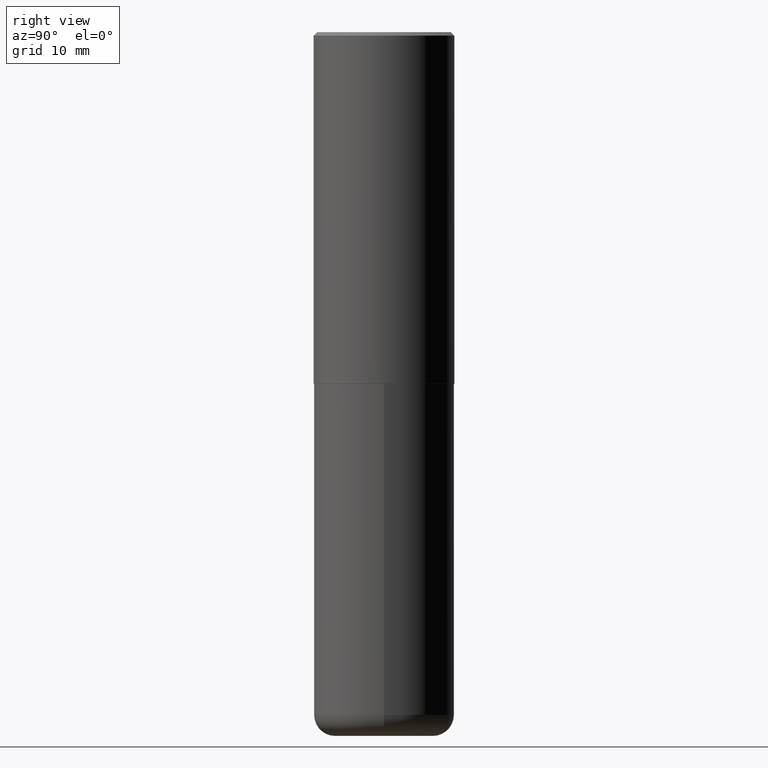
[diagram: clean part render]
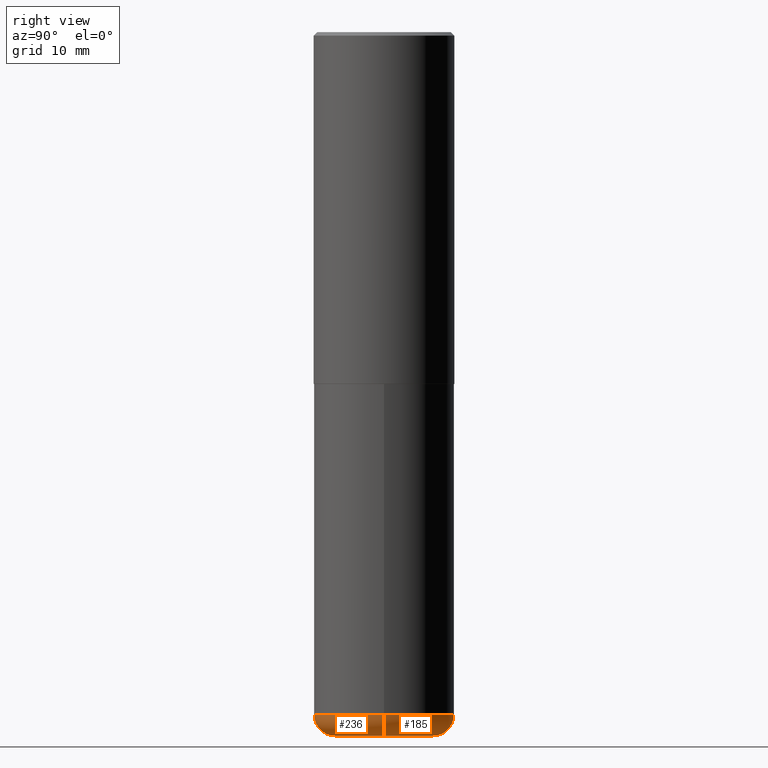
[diagram: same view with one multi-face feature highlighted, each face labeled with its STEP entity id]
A machine part, right view. The highlighted faces form ONE feature: a constant-radius fillet chain: 2 tangent blend faces with common blend radius 2.9997 mm. The faces share edges in the B-rep.
Their STEP definitions:
[1] entity #236 (Torus):
#11 = DIRECTION ( 'NONE',  ( 1.000000000000000000, -6.982962677686268288E-15, 4.883557194083112901E-29 ) ) ;
#31 = DIRECTION ( 'NONE',  ( -2.445468806185136597E-29, 3.491481338843145583E-15, 1.000000000000000000 ) ) ;
#32 = ORIENTED_EDGE ( 'NONE', *, *, #164, .F. ) ;
#36 = EDGE_CURVE ( 'NONE', #269, #348, #250, .T. ) ;
#54 = AXIS2_PLACEMENT_3D ( 'NONE', #320, #31, #166 ) ;
#60 = CARTESIAN_POINT ( 'NONE',  ( 0.2756000000000000116, -1.525812259887842581E-14, -3.818900000000000183 ) ) ;
#79 = EDGE_CURVE ( 'NONE', #309, #348, #107, .T. ) ;
#84 = CARTESIAN_POINT ( 'NONE',  ( 9.339000823940418668E-29, -1.333361808490808928E-14, -3.818900000000000183 ) ) ;
#93 = CARTESIAN_POINT ( 'NONE',  ( 9.339000823940418668E-29, -1.333361808490808928E-14, -3.818900000000000183 ) ) ;
#102 = CIRCLE ( 'NONE', #54, 0.2756000000000000116 ) ;
#105 = CARTESIAN_POINT ( 'NONE',  ( 0.3937000000000000499, -1.608281049111317408E-14, -3.818900000000000183 ) ) ;
#107 = CIRCLE ( 'NONE', #159, 0.3937000000000000499 ) ;
#130 = ORIENTED_EDGE ( 'NONE', *, *, #36, .T. ) ;
#159 = AXIS2_PLACEMENT_3D ( 'NONE', #93, #186, #409 ) ;
#164 = EDGE_CURVE ( 'NONE', #170, #309, #326, .T. ) ;
#166 = DIRECTION ( 'NONE',  ( 1.000000000000000000, -6.982962677686265922E-15, 0.000000000000000000 ) ) ;
#169 = CARTESIAN_POINT ( 'NONE',  ( -0.3937000000000000499, -1.053621133422057529E-14, -3.818900000000000183 ) ) ;
#170 = VERTEX_POINT ( 'NONE', #207 ) ;
#179 = CARTESIAN_POINT ( 'NONE',  ( 0.2756000000000000116, -1.567046654499579837E-14, -3.937000000000000277 ) ) ;
#186 = DIRECTION ( 'NONE',  ( -2.445468806185136597E-29, 3.491481338843145583E-15, 1.000000000000000000 ) ) ;
#190 = FACE_OUTER_BOUND ( 'NONE', #410, .T. ) ;
#205 = DIRECTION ( 'NONE',  ( -2.445468806185136597E-29, 3.491481338843145583E-15, 1.000000000000000000 ) ) ;
#207 = CARTESIAN_POINT ( 'NONE',  ( -0.2756000000000000116, -1.116195879274560421E-14, -3.937000000000000277 ) ) ;
#214 = ORIENTED_EDGE ( 'NONE', *, *, #79, .F. ) ;
#220 = CARTESIAN_POINT ( 'NONE',  ( -0.2756000000000000116, -1.137536230515325427E-14, -3.818900000000000183 ) ) ;
#224 = AXIS2_PLACEMENT_3D ( 'NONE', #220, #324, #264 ) ;
#236 = ADVANCED_FACE ( 'NONE', ( #190 ), #311, .T. ) ;
#250 = CIRCLE ( 'NONE', #331, 0.1180999999999999966 ) ;
#255 = DIRECTION ( 'NONE',  ( -6.982962677686266711E-15, -1.000000000000000000, 3.491481338843145583E-15 ) ) ;
#263 = AXIS2_PLACEMENT_3D ( 'NONE', #84, #205, #11 ) ;
#264 = DIRECTION ( 'NONE',  ( -1.000000000000000000, 7.105427357601005014E-15, 0.000000000000000000 ) ) ;
#269 = VERTEX_POINT ( 'NONE', #179 ) ;
#309 = VERTEX_POINT ( 'NONE', #169 ) ;
#311 = TOROIDAL_SURFACE ( 'NONE', #263, 0.2756000000000000116, 0.1181000000000000105 ) ;
#315 = ORIENTED_EDGE ( 'NONE', *, *, #365, .T. ) ;
#320 = CARTESIAN_POINT ( 'NONE',  ( 9.627810689950883669E-29, -1.374596203102546341E-14, -3.937000000000000277 ) ) ;
#324 = DIRECTION ( 'NONE',  ( 7.105427357601001859E-15, 1.000000000000000000, -3.491481338843145583E-15 ) ) ;
#326 = CIRCLE ( 'NONE', #224, 0.1180999999999999966 ) ;
#331 = AXIS2_PLACEMENT_3D ( 'NONE', #60, #255, #413 ) ;
#348 = VERTEX_POINT ( 'NONE', #105 ) ;
#365 = EDGE_CURVE ( 'NONE', #170, #269, #102, .T. ) ;
#409 = DIRECTION ( 'NONE',  ( 1.000000000000000000, -6.982962677686267499E-15, 0.000000000000000000 ) ) ;
#410 = EDGE_LOOP ( 'NONE', ( #32, #315, #130, #214 ) ) ;
#413 = DIRECTION ( 'NONE',  ( 1.000000000000000000, -6.982962677686273021E-15, 0.000000000000000000 ) ) ;
[2] entity #185 (Torus):
#24 = AXIS2_PLACEMENT_3D ( 'NONE', #158, #258, #222 ) ;
#36 = EDGE_CURVE ( 'NONE', #269, #348, #250, .T. ) ;
#40 = TOROIDAL_SURFACE ( 'NONE', #358, 0.2756000000000000116, 0.1181000000000000105 ) ;
#60 = CARTESIAN_POINT ( 'NONE',  ( 0.2756000000000000116, -1.525812259887842581E-14, -3.818900000000000183 ) ) ;
#62 = CIRCLE ( 'NONE', #71, 0.2756000000000000116 ) ;
#71 = AXIS2_PLACEMENT_3D ( 'NONE', #137, #356, #198 ) ;
#97 = EDGE_CURVE ( 'NONE', #348, #309, #209, .T. ) ;
#105 = CARTESIAN_POINT ( 'NONE',  ( 0.3937000000000000499, -1.608281049111317408E-14, -3.818900000000000183 ) ) ;
#114 = FACE_OUTER_BOUND ( 'NONE', #156, .T. ) ;
#120 = ORIENTED_EDGE ( 'NONE', *, *, #164, .T. ) ;
#133 = DIRECTION ( 'NONE',  ( -2.445468806185136597E-29, 3.491481338843145583E-15, 1.000000000000000000 ) ) ;
#137 = CARTESIAN_POINT ( 'NONE',  ( 9.627810689950883669E-29, -1.374596203102546341E-14, -3.937000000000000277 ) ) ;
#156 = EDGE_LOOP ( 'NONE', ( #241, #120, #418, #245 ) ) ;
#157 = EDGE_CURVE ( 'NONE', #269, #170, #62, .T. ) ;
#158 = CARTESIAN_POINT ( 'NONE',  ( 9.339000823940418668E-29, -1.333361808490808928E-14, -3.818900000000000183 ) ) ;
#164 = EDGE_CURVE ( 'NONE', #170, #309, #326, .T. ) ;
#169 = CARTESIAN_POINT ( 'NONE',  ( -0.3937000000000000499, -1.053621133422057529E-14, -3.818900000000000183 ) ) ;
#170 = VERTEX_POINT ( 'NONE', #207 ) ;
#179 = CARTESIAN_POINT ( 'NONE',  ( 0.2756000000000000116, -1.567046654499579837E-14, -3.937000000000000277 ) ) ;
#185 = ADVANCED_FACE ( 'NONE', ( #114 ), #40, .T. ) ;
#198 = DIRECTION ( 'NONE',  ( 1.000000000000000000, -6.982962677686265922E-15, 0.000000000000000000 ) ) ;
#207 = CARTESIAN_POINT ( 'NONE',  ( -0.2756000000000000116, -1.116195879274560421E-14, -3.937000000000000277 ) ) ;
#209 = CIRCLE ( 'NONE', #24, 0.3937000000000000499 ) ;
#220 = CARTESIAN_POINT ( 'NONE',  ( -0.2756000000000000116, -1.137536230515325427E-14, -3.818900000000000183 ) ) ;
#222 = DIRECTION ( 'NONE',  ( 1.000000000000000000, -6.982962677686267499E-15, 0.000000000000000000 ) ) ;
#224 = AXIS2_PLACEMENT_3D ( 'NONE', #220, #324, #264 ) ;
#241 = ORIENTED_EDGE ( 'NONE', *, *, #157, .T. ) ;
#245 = ORIENTED_EDGE ( 'NONE', *, *, #36, .F. ) ;
#250 = CIRCLE ( 'NONE', #331, 0.1180999999999999966 ) ;
#255 = DIRECTION ( 'NONE',  ( -6.982962677686266711E-15, -1.000000000000000000, 3.491481338843145583E-15 ) ) ;
#258 = DIRECTION ( 'NONE',  ( -2.445468806185136597E-29, 3.491481338843145583E-15, 1.000000000000000000 ) ) ;
#264 = DIRECTION ( 'NONE',  ( -1.000000000000000000, 7.105427357601005014E-15, 0.000000000000000000 ) ) ;
#269 = VERTEX_POINT ( 'NONE', #179 ) ;
#309 = VERTEX_POINT ( 'NONE', #169 ) ;
#324 = DIRECTION ( 'NONE',  ( 7.105427357601001859E-15, 1.000000000000000000, -3.491481338843145583E-15 ) ) ;
#326 = CIRCLE ( 'NONE', #224, 0.1180999999999999966 ) ;
#331 = AXIS2_PLACEMENT_3D ( 'NONE', #60, #255, #413 ) ;
#348 = VERTEX_POINT ( 'NONE', #105 ) ;
#356 = DIRECTION ( 'NONE',  ( -2.445468806185136597E-29, 3.491481338843145583E-15, 1.000000000000000000 ) ) ;
#358 = AXIS2_PLACEMENT_3D ( 'NONE', #376, #133, #378 ) ;
#376 = CARTESIAN_POINT ( 'NONE',  ( 9.339000823940418668E-29, -1.333361808490808928E-14, -3.818900000000000183 ) ) ;
#378 = DIRECTION ( 'NONE',  ( 1.000000000000000000, -6.982962677686268288E-15, 4.883557194083112901E-29 ) ) ;
#413 = DIRECTION ( 'NONE',  ( 1.000000000000000000, -6.982962677686273021E-15, 0.000000000000000000 ) ) ;
#418 = ORIENTED_EDGE ( 'NONE', *, *, #97, .F. ) ;